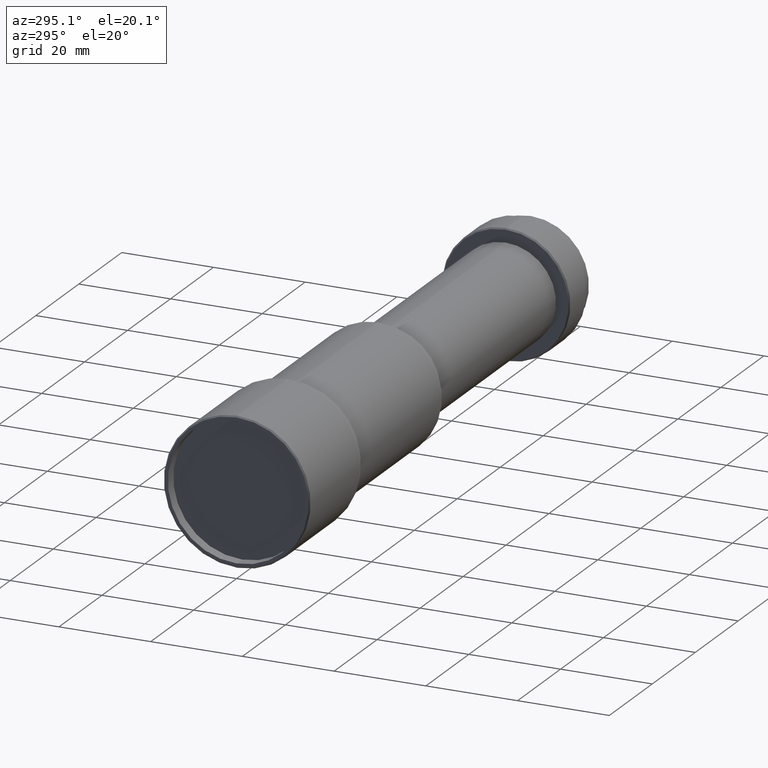
[diagram: clean part render]
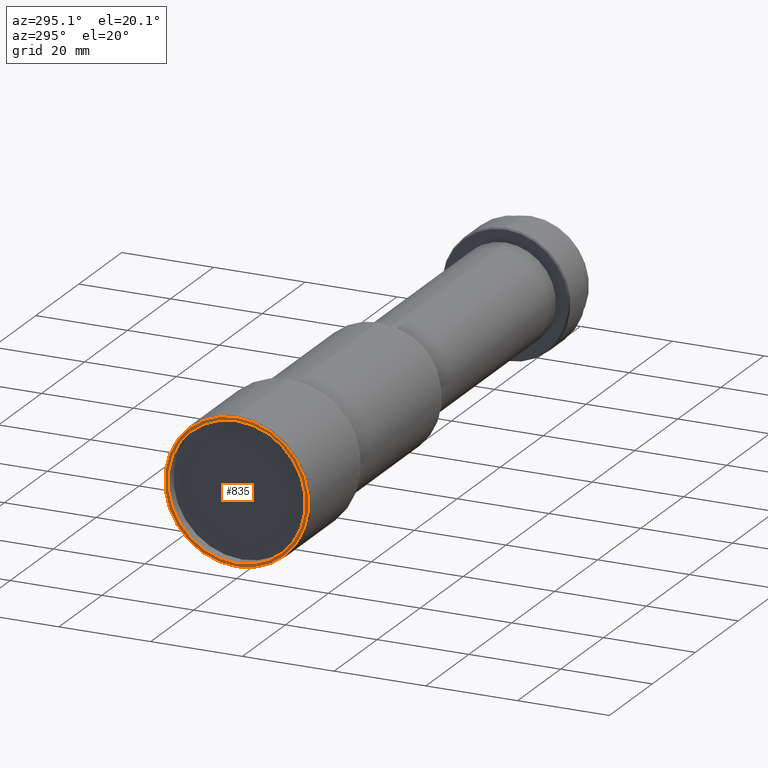
[diagram: same view with one face highlighted and labeled with its STEP entity id]
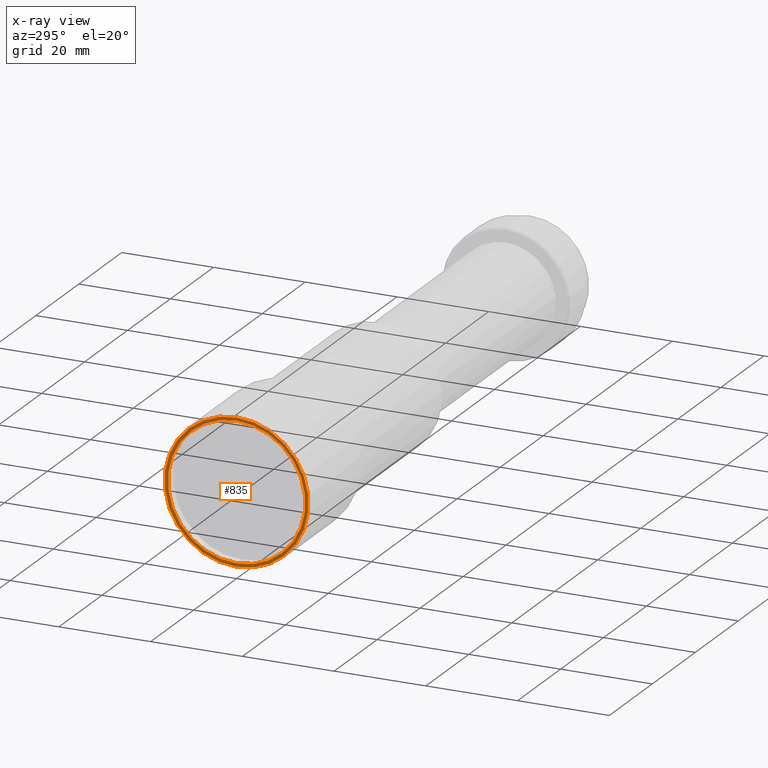
[diagram: x-ray of the same camera — body ghosted, the highlighted face saturated]
A machine part, auxiliary view. The second image highlights one B-rep face of the part: STEP entity #835.
The next image is the same camera in x-ray: the body ghosted, the highlighted face saturated — about 0% of this face is hidden behind the body in this view.
In plain terms, the highlighted planar face has unit normal (1, 0, 0).
Its self-contained STEP definition (entity closure, byte-faithful):
#10 = DIRECTION ( 'NONE',  ( -1.000000000000000000, -0.0000000000000000000, -0.0000000000000000000 ) ) ;
#22 = VERTEX_POINT ( 'NONE', #545 ) ;
#34 = CARTESIAN_POINT ( 'NONE',  ( 0.0000000000000000000, 1.836970198721029600E-015, -15.00000000000000000 ) ) ;
#62 = FACE_BOUND ( 'NONE', #894, .T. ) ;
#90 = DIRECTION ( 'NONE',  ( -1.000000000000000000, -0.0000000000000000000, -0.0000000000000000000 ) ) ;
#127 = AXIS2_PLACEMENT_3D ( 'NONE', #372, #745, #503 ) ;
#159 = VERTEX_POINT ( 'NONE', #397 ) ;
#163 = CARTESIAN_POINT ( 'NONE',  ( 0.0000000000000000000, 0.0000000000000000000, 0.0000000000000000000 ) ) ;
#178 = CARTESIAN_POINT ( 'NONE',  ( 0.0000000000000000000, 0.0000000000000000000, 0.0000000000000000000 ) ) ;
#207 = ORIENTED_EDGE ( 'NONE', *, *, #1056, .T. ) ;
#216 = CARTESIAN_POINT ( 'NONE',  ( 0.0000000000000000000, 0.0000000000000000000, 0.0000000000000000000 ) ) ;
#222 = CIRCLE ( 'NONE', #724, 15.70000000000000300 ) ;
#290 = CARTESIAN_POINT ( 'NONE',  ( 0.0000000000000000000, 0.0000000000000000000, 0.0000000000000000000 ) ) ;
#372 = CARTESIAN_POINT ( 'NONE',  ( 0.0000000000000000000, 0.0000000000000000000, 0.0000000000000000000 ) ) ;
#383 = AXIS2_PLACEMENT_3D ( 'NONE', #290, #475, #880 ) ;
#397 = CARTESIAN_POINT ( 'NONE',  ( 0.0000000000000000000, 0.0000000000000000000, 15.00000000000000000 ) ) ;
#401 = AXIS2_PLACEMENT_3D ( 'NONE', #216, #727, #718 ) ;
#413 = CIRCLE ( 'NONE', #127, 15.00000000000000000 ) ;
#440 = VERTEX_POINT ( 'NONE', #34 ) ;
#472 = CARTESIAN_POINT ( 'NONE',  ( 0.0000000000000000000, 1.941065176648555500E-015, 15.70000000000000300 ) ) ;
#473 = ORIENTED_EDGE ( 'NONE', *, *, #575, .T. ) ;
#475 = DIRECTION ( 'NONE',  ( -1.000000000000000000, 0.0000000000000000000, 0.0000000000000000000 ) ) ;
#496 = DIRECTION ( 'NONE',  ( 0.0000000000000000000, 0.0000000000000000000, 1.000000000000000000 ) ) ;
#503 = DIRECTION ( 'NONE',  ( 0.0000000000000000000, 0.0000000000000000000, 1.000000000000000000 ) ) ;
#523 = CIRCLE ( 'NONE', #383, 15.00000000000000000 ) ;
#545 = CARTESIAN_POINT ( 'NONE',  ( 0.0000000000000000000, 0.0000000000000000000, -15.70000000000000300 ) ) ;
#575 = EDGE_CURVE ( 'NONE', #22, #829, #631, .T. ) ;
#576 = FACE_OUTER_BOUND ( 'NONE', #596, .T. ) ;
#596 = EDGE_LOOP ( 'NONE', ( #473, #207 ) ) ;
#631 = CIRCLE ( 'NONE', #818, 15.70000000000000300 ) ;
#718 = DIRECTION ( 'NONE',  ( 0.0000000000000000000, 0.0000000000000000000, -1.000000000000000000 ) ) ;
#724 = AXIS2_PLACEMENT_3D ( 'NONE', #178, #90, #939 ) ;
#727 = DIRECTION ( 'NONE',  ( 1.000000000000000000, 0.0000000000000000000, 0.0000000000000000000 ) ) ;
#745 = DIRECTION ( 'NONE',  ( -1.000000000000000000, 0.0000000000000000000, 0.0000000000000000000 ) ) ;
#762 = ORIENTED_EDGE ( 'NONE', *, *, #942, .F. ) ;
#806 = PLANE ( 'NONE',  #401 ) ;
#818 = AXIS2_PLACEMENT_3D ( 'NONE', #163, #10, #496 ) ;
#829 = VERTEX_POINT ( 'NONE', #472 ) ;
#835 = ADVANCED_FACE ( 'NONE', ( #62, #576 ), #806, .F. ) ;
#873 = EDGE_CURVE ( 'NONE', #440, #159, #523, .T. ) ;
#880 = DIRECTION ( 'NONE',  ( 0.0000000000000000000, 0.0000000000000000000, 1.000000000000000000 ) ) ;
#894 = EDGE_LOOP ( 'NONE', ( #762, #907 ) ) ;
#907 = ORIENTED_EDGE ( 'NONE', *, *, #873, .F. ) ;
#939 = DIRECTION ( 'NONE',  ( 0.0000000000000000000, 0.0000000000000000000, 1.000000000000000000 ) ) ;
#942 = EDGE_CURVE ( 'NONE', #159, #440, #413, .T. ) ;
#1056 = EDGE_CURVE ( 'NONE', #829, #22, #222, .T. ) ;